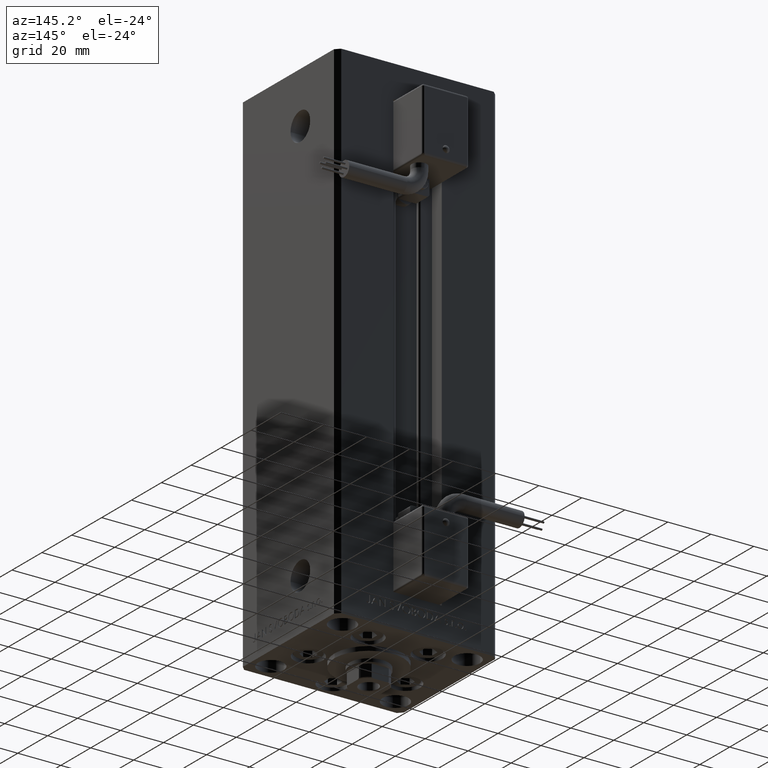
[diagram: clean part render]
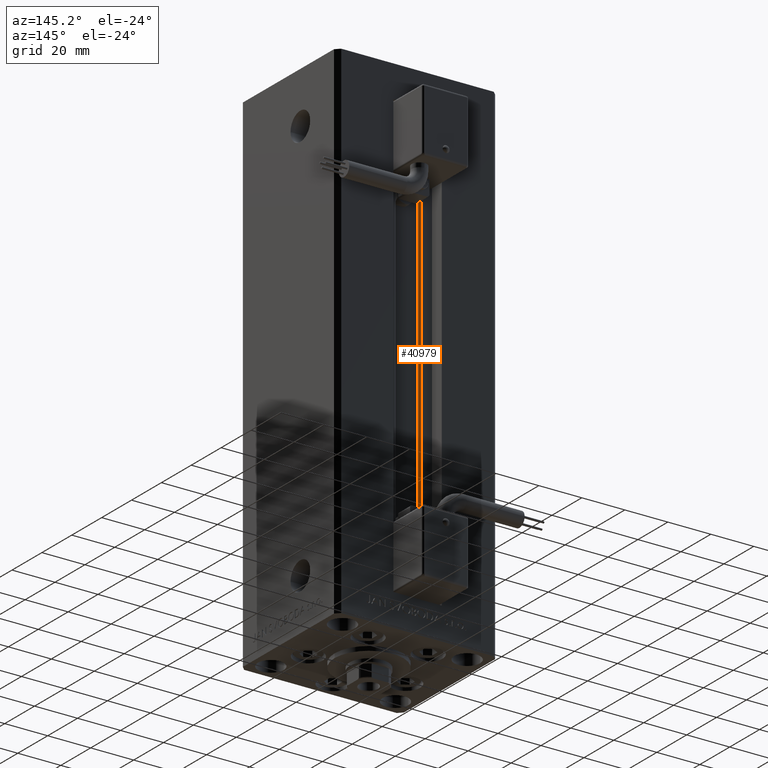
[diagram: same view with one face highlighted and labeled with its STEP entity id]
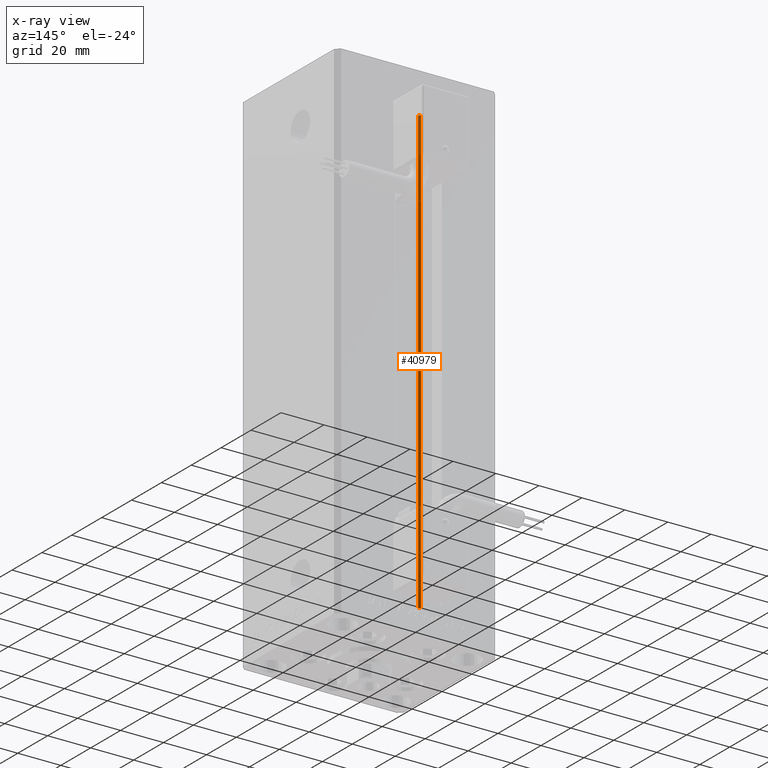
[diagram: x-ray of the same camera — body ghosted, the highlighted face saturated]
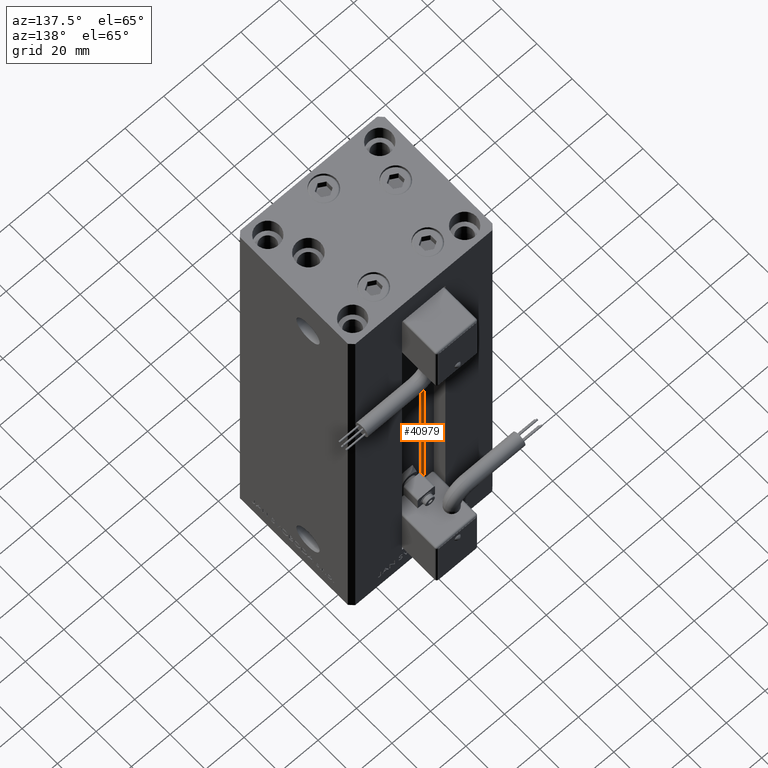
[diagram: same view with one face highlighted and labeled with its STEP entity id]
A machine part, auxiliary view. The second image highlights one B-rep face of the part: STEP entity #40979.
The next image is the same camera in x-ray: the body ghosted, the highlighted face saturated — about 13% of this face is hidden behind the body in this view.
A second angle (auxiliary view) of the same face is appended — the face is thin or edge-on in the first view.
In plain terms, the highlighted cylindrical surface (edge-blend (fillet) strip) has radius 0.9333 mm, axis along (0, 0, 1).
Its self-contained STEP definition (entity closure, byte-faithful):
#352 = VECTOR ( 'NONE', #48501, 1000.000000000000000 ) ;
#1422 = DIRECTION ( 'NONE',  ( -0.000000000000000000, -0.000000000000000000, 1.000000000000000000 ) ) ;
#1679 = CARTESIAN_POINT ( 'NONE',  ( -6.183333333334001480, 25.06666666666599141, 0.000000000000000000 ) ) ;
#2253 = VERTEX_POINT ( 'NONE', #15509 ) ;
#3001 = ORIENTED_EDGE ( 'NONE', *, *, #35633, .T. ) ;
#5450 = VECTOR ( 'NONE', #30210, 1000.000000000000000 ) ;
#6324 = EDGE_CURVE ( 'NONE', #10253, #10349, #34017, .T. ) ;
#7262 = ORIENTED_EDGE ( 'NONE', *, *, #6324, .F. ) ;
#7971 = DIRECTION ( 'NONE',  ( 0.000000000000000000, 0.000000000000000000, -1.000000000000000000 ) ) ;
#10253 = VERTEX_POINT ( 'NONE', #22400 ) ;
#10349 = VERTEX_POINT ( 'NONE', #20209 ) ;
#13329 = LINE ( 'NONE', #29477, #352 ) ;
#14568 = CARTESIAN_POINT ( 'NONE',  ( -6.183333333334001480, 25.99999999999999289, 206.0000000000000000 ) ) ;
#15239 = AXIS2_PLACEMENT_3D ( 'NONE', #1679, #1422, #46372 ) ;
#15509 = CARTESIAN_POINT ( 'NONE',  ( -5.250000000000000000, 25.06666666666599141, 206.0000000000000000 ) ) ;
#15594 = DIRECTION ( 'NONE',  ( -0.000000000000000000, -0.000000000000000000, -1.000000000000000000 ) ) ;
#18083 = FACE_OUTER_BOUND ( 'NONE', #27602, .T. ) ;
#18410 = CIRCLE ( 'NONE', #28583, 0.9333333333340008142 ) ;
#20209 = CARTESIAN_POINT ( 'NONE',  ( -5.250000000000000000, 25.06666666666599141, 0.000000000000000000 ) ) ;
#22400 = CARTESIAN_POINT ( 'NONE',  ( -6.183333333334001480, 25.99999999999999289, 0.000000000000000000 ) ) ;
#23643 = EDGE_CURVE ( 'NONE', #10349, #2253, #13329, .T. ) ;
#25197 = EDGE_CURVE ( 'NONE', #10253, #31834, #50537, .T. ) ;
#27263 = AXIS2_PLACEMENT_3D ( 'NONE', #51835, #15594, #47849 ) ;
#27602 = EDGE_LOOP ( 'NONE', ( #46347, #7262, #52199, #3001 ) ) ;
#28583 = AXIS2_PLACEMENT_3D ( 'NONE', #44228, #7971, #40252 ) ;
#29477 = CARTESIAN_POINT ( 'NONE',  ( -5.250000000000000000, 25.06666666666599141, 0.000000000000000000 ) ) ;
#30210 = DIRECTION ( 'NONE',  ( -0.000000000000000000, -0.000000000000000000, 1.000000000000000000 ) ) ;
#31834 = VERTEX_POINT ( 'NONE', #14568 ) ;
#33622 = CARTESIAN_POINT ( 'NONE',  ( -6.183333333334001480, 25.99999999999999289, 0.000000000000000000 ) ) ;
#34017 = CIRCLE ( 'NONE', #27263, 0.9333333333340008142 ) ;
#35633 = EDGE_CURVE ( 'NONE', #31834, #2253, #18410, .T. ) ;
#40252 = DIRECTION ( 'NONE',  ( 1.000000000000000000, 0.000000000000000000, 0.000000000000000000 ) ) ;
#40979 = ADVANCED_FACE ( 'NONE', ( #18083 ), #50348, .T. ) ;
#44228 = CARTESIAN_POINT ( 'NONE',  ( -6.183333333334001480, 25.06666666666599141, 206.0000000000000000 ) ) ;
#46347 = ORIENTED_EDGE ( 'NONE', *, *, #23643, .F. ) ;
#46372 = DIRECTION ( 'NONE',  ( 1.000000000000000000, 0.000000000000000000, 0.000000000000000000 ) ) ;
#47849 = DIRECTION ( 'NONE',  ( 1.000000000000000000, 0.000000000000000000, 0.000000000000000000 ) ) ;
#48501 = DIRECTION ( 'NONE',  ( -0.000000000000000000, -0.000000000000000000, 1.000000000000000000 ) ) ;
#50348 = CYLINDRICAL_SURFACE ( 'NONE', #15239, 0.9333333333340008142 ) ;
#50537 = LINE ( 'NONE', #33622, #5450 ) ;
#51835 = CARTESIAN_POINT ( 'NONE',  ( -6.183333333334001480, 25.06666666666599141, 0.000000000000000000 ) ) ;
#52199 = ORIENTED_EDGE ( 'NONE', *, *, #25197, .T. ) ;